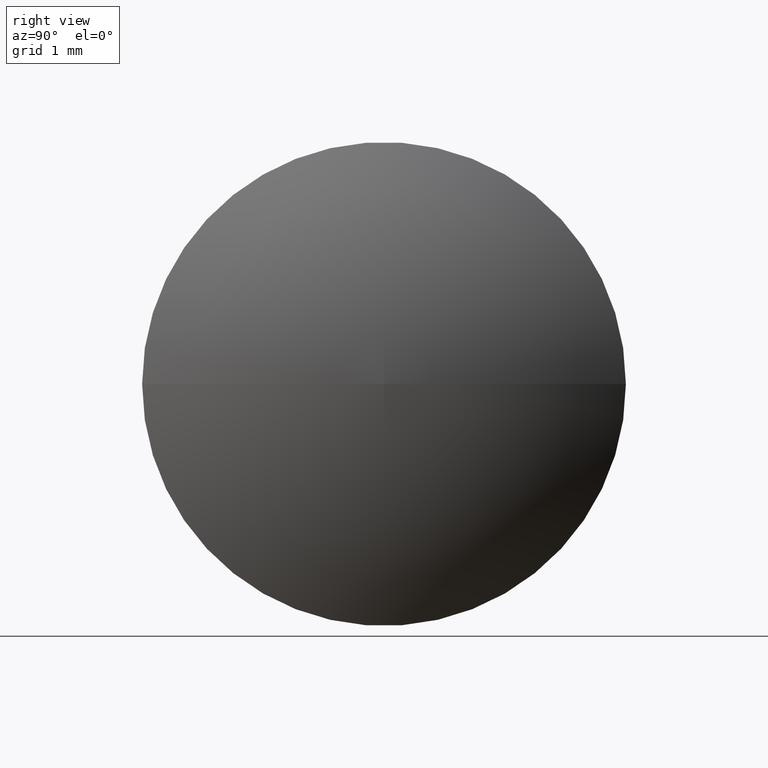
[diagram: clean part render]
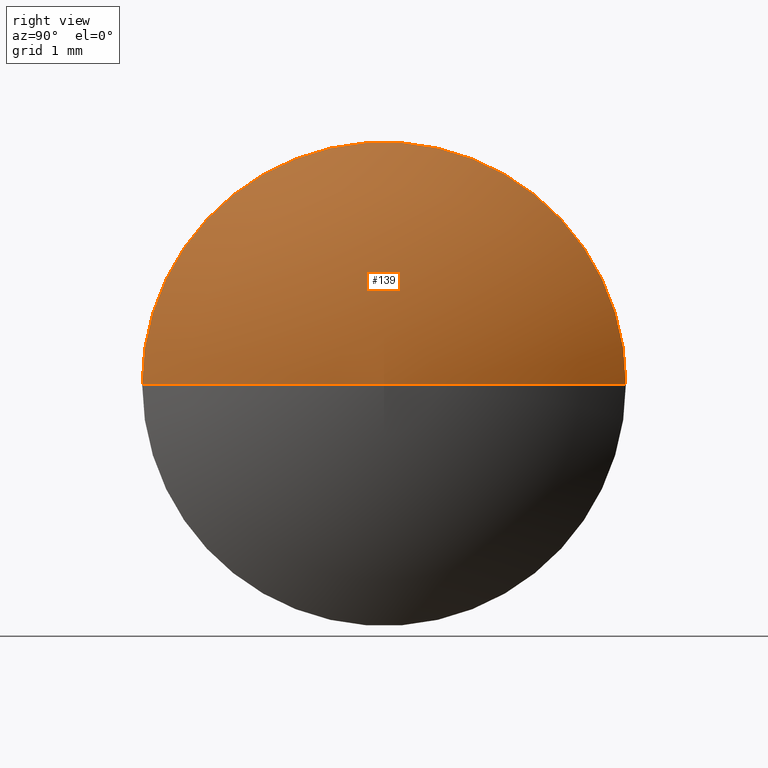
[diagram: same view with one face highlighted and labeled with its STEP entity id]
A machine part, right view. The second image highlights one B-rep face of the part: STEP entity #139.
In plain terms, the highlighted toroidal blend (fillet) surface has major radius 0.0265 mm and minor (blend) radius 3.784 mm.
Its self-contained STEP definition (entity closure, byte-faithful):
#17 = CARTESIAN_POINT ( 'NONE',  ( 7.515997151722468000, 5.268573223075914100, 0.0000000000000000000 ) ) ;
#27 = AXIS2_PLACEMENT_3D ( 'NONE', #248, #74, #131 ) ;
#33 = AXIS2_PLACEMENT_3D ( 'NONE', #17, #126, #91 ) ;
#37 = CARTESIAN_POINT ( 'NONE',  ( 10.71165604224090900, 5.242101976729324900, 0.0000000000000000000 ) ) ;
#39 = VERTEX_POINT ( 'NONE', #149 ) ;
#44 = VERTEX_POINT ( 'NONE', #197 ) ;
#48 = CARTESIAN_POINT ( 'NONE',  ( 7.515997151722464400, 5.215630730383105100, -3.241792710756542700E-018 ) ) ;
#49 = ORIENTED_EDGE ( 'NONE', *, *, #200, .F. ) ;
#62 = AXIS2_PLACEMENT_3D ( 'NONE', #37, #196, #198 ) ;
#68 = ORIENTED_EDGE ( 'NONE', *, *, #113, .F. ) ;
#74 = DIRECTION ( 'NONE',  ( -1.000000000000000000, 5.782411586589156700E-014, -0.0000000000000000000 ) ) ;
#91 = DIRECTION ( 'NONE',  ( -1.000000000000000000, 0.0000000000000000000, 0.0000000000000000000 ) ) ;
#96 = EDGE_LOOP ( 'NONE', ( #68, #147, #49 ) ) ;
#109 = CIRCLE ( 'NONE', #33, 3.784021862624245900 ) ;
#113 = EDGE_CURVE ( 'NONE', #182, #44, #109, .T. ) ;
#120 = CIRCLE ( 'NONE', #62, 2.000000000000091000 ) ;
#126 = DIRECTION ( 'NONE',  ( 0.0000000000000000000, -0.0000000000000000000, -1.000000000000000000 ) ) ;
#131 = DIRECTION ( 'NONE',  ( -5.782411586589156700E-014, -1.000000000000000000, 0.0000000000000000000 ) ) ;
#139 = ADVANCED_FACE ( 'NONE', ( #292 ), #180, .T. ) ;
#147 = ORIENTED_EDGE ( 'NONE', *, *, #267, .T. ) ;
#149 = CARTESIAN_POINT ( 'NONE',  ( 10.71165604224102300, 7.242101976729364800, 2.449293598294755200E-016 ) ) ;
#180 = TOROIDAL_SURFACE ( 'NONE', #27, -0.02647124634640457200, 3.784021862624245900 ) ;
#182 = VERTEX_POINT ( 'NONE', #227 ) ;
#196 = DIRECTION ( 'NONE',  ( -1.000000000000000000, 5.782411586589156700E-014, -0.0000000000000000000 ) ) ;
#197 = CARTESIAN_POINT ( 'NONE',  ( 10.71165604224079200, 3.242101976729284000, 0.0000000000000000000 ) ) ;
#198 = DIRECTION ( 'NONE',  ( -5.811323644522038700E-014, -1.000000000000000000, 0.0000000000000000000 ) ) ;
#200 = EDGE_CURVE ( 'NONE', #44, #39, #120, .T. ) ;
#227 = CARTESIAN_POINT ( 'NONE',  ( 11.29992642298734200, 5.242101976729291100, 0.0000000000000000000 ) ) ;
#230 = CIRCLE ( 'NONE', #246, 3.784021862624245900 ) ;
#246 = AXIS2_PLACEMENT_3D ( 'NONE', #48, #300, #299 ) ;
#248 = CARTESIAN_POINT ( 'NONE',  ( 7.515997151722466200, 5.242101976729509600, 0.0000000000000000000 ) ) ;
#267 = EDGE_CURVE ( 'NONE', #182, #39, #230, .T. ) ;
#292 = FACE_OUTER_BOUND ( 'NONE', #96, .T. ) ;
#299 = DIRECTION ( 'NONE',  ( 0.0000000000000000000, -1.000000000000000000, -1.224646799147353200E-016 ) ) ;
#300 = DIRECTION ( 'NONE',  ( -7.081411840868978900E-030, -1.224646799147353200E-016, 1.000000000000000000 ) ) ;